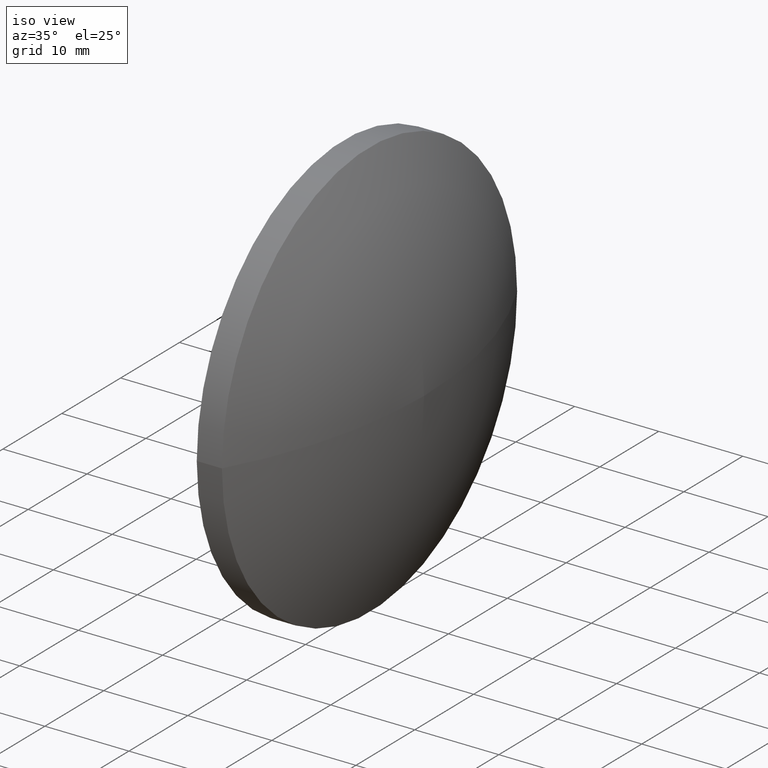
[diagram: clean part render]
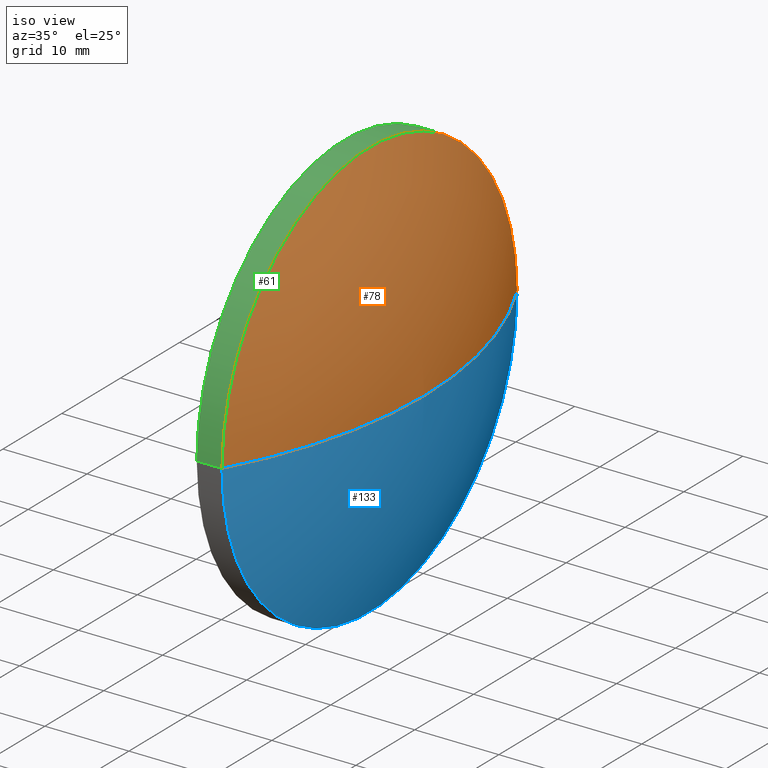
[diagram: same view with three faces highlighted in distinct colors, each labeled with its STEP entity id]
A machine part, iso view with three faces highlighted in distinct colors.
Their STEP definitions:

[orange] entity #78 — the highlighted toroidal blend (fillet) surface has major radius 0.082 mm and minor (blend) radius 51.6746 mm.
#9 = EDGE_CURVE ( 'NONE', #180, #187, #65, .T. ) ;
#10 = CARTESIAN_POINT ( 'NONE',  ( 562.0356236752284100, 92.89304286200956500, 0.0000000000000000000 ) ) ;
#20 = AXIS2_PLACEMENT_3D ( 'NONE', #189, #130, #145 ) ;
#21 = CARTESIAN_POINT ( 'NONE',  ( 516.9084745951666900, 118.0685464898730300, 0.0000000000000000000 ) ) ;
#25 = CARTESIAN_POINT ( 'NONE',  ( 562.1327683636350200, 142.9045088534293800, 3.062324864573990200E-015 ) ) ;
#26 = DIRECTION ( 'NONE',  ( -0.001942444661694359900, -0.9999981134525884900, 0.0000000000000000000 ) ) ;
#28 = ORIENTED_EDGE ( 'NONE', *, *, #70, .T. ) ;
#38 = FACE_OUTER_BOUND ( 'NONE', #185, .T. ) ;
#50 = CIRCLE ( 'NONE', #155, 25.00578017029977200 ) ;
#52 = VERTEX_POINT ( 'NONE', #25 ) ;
#65 = CIRCLE ( 'NONE', #184, 51.67461240310073100 ) ;
#70 = EDGE_CURVE ( 'NONE', #180, #52, #151, .T. ) ;
#78 = ADVANCED_FACE ( 'NONE', ( #38 ), #86, .T. ) ;
#86 = TOROIDAL_SURFACE ( 'NONE', #112, -0.08201897295444926500, 51.67461240310074500 ) ;
#87 = DIRECTION ( 'NONE',  ( -0.9999981134525887100, 0.001942444661693687000, -0.0000000000000000000 ) ) ;
#102 = CARTESIAN_POINT ( 'NONE',  ( 516.9083152778504200, 117.9865276716512600, 0.0000000000000000000 ) ) ;
#105 = CARTESIAN_POINT ( 'NONE',  ( 568.5827651033539500, 117.8861527230796500, 0.0000000000000000000 ) ) ;
#112 = AXIS2_PLACEMENT_3D ( 'NONE', #102, #87, #127 ) ;
#113 = DIRECTION ( 'NONE',  ( -0.9999981134525887100, 0.001942444661693687000, -0.0000000000000000000 ) ) ;
#118 = ORIENTED_EDGE ( 'NONE', *, *, #134, .F. ) ;
#127 = DIRECTION ( 'NONE',  ( -0.001942444661693686800, -0.9999981134525886000, 0.0000000000000000000 ) ) ;
#130 = DIRECTION ( 'NONE',  ( -2.378808637464037400E-019, -1.224644488793104600E-016, 1.000000000000000000 ) ) ;
#134 = EDGE_CURVE ( 'NONE', #187, #52, #50, .T. ) ;
#145 = DIRECTION ( 'NONE',  ( 0.0000000000000000000, -1.000000000000000000, -1.224644488793104600E-016 ) ) ;
#151 = CIRCLE ( 'NONE', #20, 51.67461240310075300 ) ;
#155 = AXIS2_PLACEMENT_3D ( 'NONE', #158, #113, #26 ) ;
#158 = CARTESIAN_POINT ( 'NONE',  ( 562.0841960194317200, 117.8987758577195000, 0.0000000000000000000 ) ) ;
#169 = DIRECTION ( 'NONE',  ( 0.0000000000000000000, -0.0000000000000000000, -1.000000000000000000 ) ) ;
#180 = VERTEX_POINT ( 'NONE', #105 ) ;
#182 = ORIENTED_EDGE ( 'NONE', *, *, #9, .F. ) ;
#184 = AXIS2_PLACEMENT_3D ( 'NONE', #21, #169, #186 ) ;
#185 = EDGE_LOOP ( 'NONE', ( #182, #28, #118 ) ) ;
#186 = DIRECTION ( 'NONE',  ( -1.000000000000000000, 0.0000000000000000000, 0.0000000000000000000 ) ) ;
#187 = VERTEX_POINT ( 'NONE', #10 ) ;
#189 = CARTESIAN_POINT ( 'NONE',  ( 516.9081559605341500, 117.9045088534294900, -1.004442726980196500E-017 ) ) ;

[blue] entity #133 — the highlighted toroidal blend (fillet) surface has major radius 0.082 mm and minor (blend) radius 51.6746 mm.
#6 = EDGE_LOOP ( 'NONE', ( #137, #54, #63 ) ) ;
#9 = EDGE_CURVE ( 'NONE', #180, #187, #65, .T. ) ;
#10 = CARTESIAN_POINT ( 'NONE',  ( 562.0356236752284100, 92.89304286200956500, 0.0000000000000000000 ) ) ;
#20 = AXIS2_PLACEMENT_3D ( 'NONE', #189, #130, #145 ) ;
#21 = CARTESIAN_POINT ( 'NONE',  ( 516.9084745951666900, 118.0685464898730300, 0.0000000000000000000 ) ) ;
#25 = CARTESIAN_POINT ( 'NONE',  ( 562.1327683636350200, 142.9045088534293800, 3.062324864573990200E-015 ) ) ;
#34 = AXIS2_PLACEMENT_3D ( 'NONE', #44, #89, #114 ) ;
#44 = CARTESIAN_POINT ( 'NONE',  ( 562.0841960194317200, 117.8987758577195000, 0.0000000000000000000 ) ) ;
#52 = VERTEX_POINT ( 'NONE', #25 ) ;
#54 = ORIENTED_EDGE ( 'NONE', *, *, #9, .T. ) ;
#55 = DIRECTION ( 'NONE',  ( -0.001942444661693686800, -0.9999981134525886000, 0.0000000000000000000 ) ) ;
#63 = ORIENTED_EDGE ( 'NONE', *, *, #140, .F. ) ;
#65 = CIRCLE ( 'NONE', #184, 51.67461240310073100 ) ;
#70 = EDGE_CURVE ( 'NONE', #180, #52, #151, .T. ) ;
#72 = DIRECTION ( 'NONE',  ( -0.9999981134525887100, 0.001942444661693687000, -0.0000000000000000000 ) ) ;
#89 = DIRECTION ( 'NONE',  ( -0.9999981134525887100, 0.001942444661693687000, -0.0000000000000000000 ) ) ;
#105 = CARTESIAN_POINT ( 'NONE',  ( 568.5827651033539500, 117.8861527230796500, 0.0000000000000000000 ) ) ;
#106 = CARTESIAN_POINT ( 'NONE',  ( 516.9083152778504200, 117.9865276716512600, 0.0000000000000000000 ) ) ;
#114 = DIRECTION ( 'NONE',  ( -0.001942444661694359900, -0.9999981134525884900, 0.0000000000000000000 ) ) ;
#120 = FACE_OUTER_BOUND ( 'NONE', #6, .T. ) ;
#130 = DIRECTION ( 'NONE',  ( -2.378808637464037400E-019, -1.224644488793104600E-016, 1.000000000000000000 ) ) ;
#133 = ADVANCED_FACE ( 'NONE', ( #120 ), #147, .T. ) ;
#137 = ORIENTED_EDGE ( 'NONE', *, *, #70, .F. ) ;
#140 = EDGE_CURVE ( 'NONE', #52, #187, #163, .T. ) ;
#145 = DIRECTION ( 'NONE',  ( 0.0000000000000000000, -1.000000000000000000, -1.224644488793104600E-016 ) ) ;
#147 = TOROIDAL_SURFACE ( 'NONE', #148, -0.08201897295444926500, 51.67461240310074500 ) ;
#148 = AXIS2_PLACEMENT_3D ( 'NONE', #106, #72, #55 ) ;
#151 = CIRCLE ( 'NONE', #20, 51.67461240310075300 ) ;
#163 = CIRCLE ( 'NONE', #34, 25.00578017029977200 ) ;
#169 = DIRECTION ( 'NONE',  ( 0.0000000000000000000, -0.0000000000000000000, -1.000000000000000000 ) ) ;
#180 = VERTEX_POINT ( 'NONE', #105 ) ;
#184 = AXIS2_PLACEMENT_3D ( 'NONE', #21, #169, #186 ) ;
#186 = DIRECTION ( 'NONE',  ( -1.000000000000000000, 0.0000000000000000000, 0.0000000000000000000 ) ) ;
#187 = VERTEX_POINT ( 'NONE', #10 ) ;
#189 = CARTESIAN_POINT ( 'NONE',  ( 516.9081559605341500, 117.9045088534294900, -1.004442726980196500E-017 ) ) ;

[green] entity #61 — the highlighted conical surface has half-angle 0.111 deg.
#1 = CONICAL_SURFACE ( 'NONE', #83, 25.00578017029977200, 0.001942445883198638900 ) ;
#4 = LINE ( 'NONE', #12, #156 ) ;
#8 = DIRECTION ( 'NONE',  ( 0.9999981134525887100, -0.001942444661693687000, 0.0000000000000000000 ) ) ;
#10 = CARTESIAN_POINT ( 'NONE',  ( 562.0356236752284100, 92.89304286200956500, 0.0000000000000000000 ) ) ;
#11 = VECTOR ( 'NONE', #85, 1000.000000000000000 ) ;
#12 = CARTESIAN_POINT ( 'NONE',  ( 562.0356236752284100, 92.89304286200958000, 3.062324864573997700E-015 ) ) ;
#23 = CARTESIAN_POINT ( 'NONE',  ( 562.0841960194317200, 117.8987758577195000, 0.0000000000000000000 ) ) ;
#25 = CARTESIAN_POINT ( 'NONE',  ( 562.1327683636350200, 142.9045088534293800, 3.062324864573990200E-015 ) ) ;
#26 = DIRECTION ( 'NONE',  ( -0.001942444661694359900, -0.9999981134525884900, 0.0000000000000000000 ) ) ;
#35 = ORIENTED_EDGE ( 'NONE', *, *, #149, .F. ) ;
#50 = CIRCLE ( 'NONE', #155, 25.00578017029977200 ) ;
#52 = VERTEX_POINT ( 'NONE', #25 ) ;
#61 = ADVANCED_FACE ( 'NONE', ( #95 ), #1, .T. ) ;
#64 = DIRECTION ( 'NONE',  ( 0.001942444661694359900, 0.9999981134525884900, 0.0000000000000000000 ) ) ;
#67 = VERTEX_POINT ( 'NONE', #190 ) ;
#76 = LINE ( 'NONE', #116, #11 ) ;
#77 = CIRCLE ( 'NONE', #183, 24.99995283631469100 ) ;
#79 = EDGE_CURVE ( 'NONE', #67, #52, #76, .T. ) ;
#83 = AXIS2_PLACEMENT_3D ( 'NONE', #23, #8, #64 ) ;
#85 = DIRECTION ( 'NONE',  ( 1.000000000000000000, -6.190794404892230300E-016, 0.0000000000000000000 ) ) ;
#88 = DIRECTION ( 'NONE',  ( 0.9999924538174724800, -0.003884881994358857600, 2.378808637463279100E-019 ) ) ;
#95 = FACE_OUTER_BOUND ( 'NONE', #122, .T. ) ;
#100 = EDGE_CURVE ( 'NONE', #135, #187, #4, .T. ) ;
#113 = DIRECTION ( 'NONE',  ( -0.9999981134525887100, 0.001942444661693687000, -0.0000000000000000000 ) ) ;
#116 = CARTESIAN_POINT ( 'NONE',  ( 562.1327683636350200, 142.9045088534294300, 0.0000000000000000000 ) ) ;
#122 = EDGE_LOOP ( 'NONE', ( #35, #165, #160, #131 ) ) ;
#128 = CARTESIAN_POINT ( 'NONE',  ( 559.0842073387056000, 117.9046031807110400, 0.0000000000000000000 ) ) ;
#131 = ORIENTED_EDGE ( 'NONE', *, *, #79, .F. ) ;
#134 = EDGE_CURVE ( 'NONE', #187, #52, #50, .T. ) ;
#135 = VERTEX_POINT ( 'NONE', #188 ) ;
#149 = EDGE_CURVE ( 'NONE', #135, #67, #77, .T. ) ;
#154 = DIRECTION ( 'NONE',  ( -0.001942444661691946700, -0.9999981134525887100, 0.0000000000000000000 ) ) ;
#155 = AXIS2_PLACEMENT_3D ( 'NONE', #158, #113, #26 ) ;
#156 = VECTOR ( 'NONE', #88, 1000.000000000000100 ) ;
#158 = CARTESIAN_POINT ( 'NONE',  ( 562.0841960194317200, 117.8987758577195000, 0.0000000000000000000 ) ) ;
#160 = ORIENTED_EDGE ( 'NONE', *, *, #134, .T. ) ;
#165 = ORIENTED_EDGE ( 'NONE', *, *, #100, .T. ) ;
#176 = DIRECTION ( 'NONE',  ( -0.9999981134525887100, 0.001942444661693687000, -0.0000000000000000000 ) ) ;
#183 = AXIS2_PLACEMENT_3D ( 'NONE', #128, #176, #154 ) ;
#187 = VERTEX_POINT ( 'NONE', #10 ) ;
#188 = CARTESIAN_POINT ( 'NONE',  ( 559.0356463137761700, 92.90469750799265100, 3.061611221982758700E-015 ) ) ;
#190 = CARTESIAN_POINT ( 'NONE',  ( 559.1327683636350200, 142.9045088534294300, 0.0000000000000000000 ) ) ;